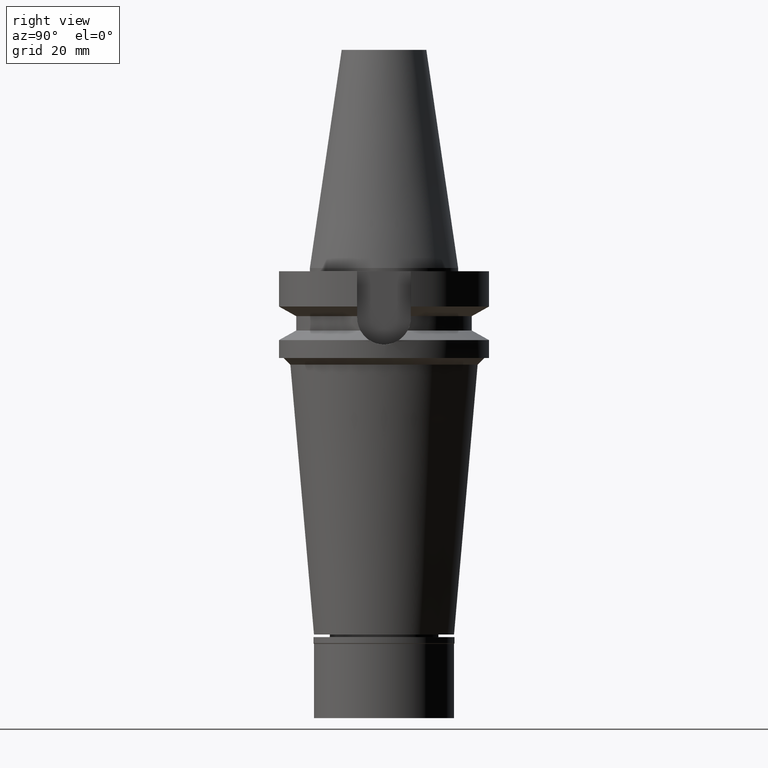
[diagram: clean part render]
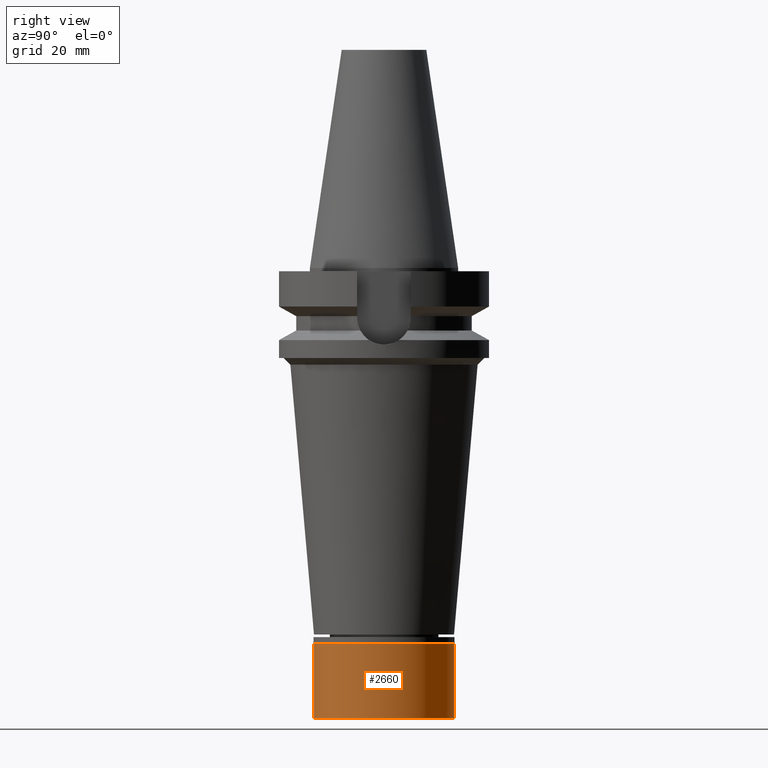
[diagram: same view with one face highlighted and labeled with its STEP entity id]
A machine part, right view. The second image highlights one B-rep face of the part: STEP entity #2660.
In plain terms, the highlighted cylindrical surface (partial cylindrical patch) has radius 21 mm, axis along (0, 0, -1).
Its self-contained STEP definition (entity closure, byte-faithful):
#126 = DIRECTION ( 'NONE',  ( 0.0000000000000000000, 0.0000000000000000000, 1.000000000000000000 ) ) ;
#141 = VERTEX_POINT ( 'NONE', #2190 ) ;
#164 = CARTESIAN_POINT ( 'NONE',  ( 0.0000000000000000000, 21.00000000000000000, -24.29999999999999716 ) ) ;
#339 = LINE ( 'NONE', #1289, #1392 ) ;
#366 = ORIENTED_EDGE ( 'NONE', *, *, #1312, .T. ) ;
#457 = DIRECTION ( 'NONE',  ( 0.0000000000000000000, 0.0000000000000000000, -1.000000000000000000 ) ) ;
#553 = CARTESIAN_POINT ( 'NONE',  ( 0.0000000000000000000, 0.0000000000000000000, -2.000000000000000000 ) ) ;
#626 = CARTESIAN_POINT ( 'NONE',  ( 0.0000000000000000000, 21.00000000000000000, -2.000000000000000000 ) ) ;
#628 = CIRCLE ( 'NONE', #2668, 21.00000000000000000 ) ;
#698 = DIRECTION ( 'NONE',  ( 0.0000000000000000000, -1.000000000000000000, 0.0000000000000000000 ) ) ;
#786 = VERTEX_POINT ( 'NONE', #1762 ) ;
#811 = AXIS2_PLACEMENT_3D ( 'NONE', #1670, #457, #698 ) ;
#913 = DIRECTION ( 'NONE',  ( 0.0000000000000000000, -1.000000000000000000, 0.0000000000000000000 ) ) ;
#1289 = CARTESIAN_POINT ( 'NONE',  ( 0.0000000000000000000, -21.00000000000000000, -2.000000000000000000 ) ) ;
#1294 = LINE ( 'NONE', #1788, #1432 ) ;
#1312 = EDGE_CURVE ( 'NONE', #786, #141, #339, .T. ) ;
#1392 = VECTOR ( 'NONE', #2268, 1000.000000000000000 ) ;
#1432 = VECTOR ( 'NONE', #2768, 1000.000000000000000 ) ;
#1434 = FACE_OUTER_BOUND ( 'NONE', #2281, .T. ) ;
#1538 = DIRECTION ( 'NONE',  ( 0.0000000000000000000, 0.0000000000000000000, -1.000000000000000000 ) ) ;
#1567 = CARTESIAN_POINT ( 'NONE',  ( 0.0000000000000000000, 0.0000000000000000000, -24.29999999999999716 ) ) ;
#1621 = EDGE_CURVE ( 'NONE', #141, #2049, #628, .T. ) ;
#1670 = CARTESIAN_POINT ( 'NONE',  ( 0.0000000000000000000, 0.0000000000000000000, 0.0000000000000000000 ) ) ;
#1762 = CARTESIAN_POINT ( 'NONE',  ( 0.0000000000000000000, -21.00000000000000000, -2.000000000000000000 ) ) ;
#1770 = ORIENTED_EDGE ( 'NONE', *, *, #1621, .T. ) ;
#1788 = CARTESIAN_POINT ( 'NONE',  ( 0.0000000000000000000, 21.00000000000000000, -2.000000000000000000 ) ) ;
#1977 = EDGE_CURVE ( 'NONE', #3021, #2049, #1294, .T. ) ;
#2046 = DIRECTION ( 'NONE',  ( 0.0000000000000000000, 1.000000000000000000, 0.0000000000000000000 ) ) ;
#2049 = VERTEX_POINT ( 'NONE', #164 ) ;
#2190 = CARTESIAN_POINT ( 'NONE',  ( 0.0000000000000000000, -21.00000000000000000, -24.29999999999999716 ) ) ;
#2268 = DIRECTION ( 'NONE',  ( 0.0000000000000000000, 0.0000000000000000000, -1.000000000000000000 ) ) ;
#2281 = EDGE_LOOP ( 'NONE', ( #2612, #366, #1770, #2565 ) ) ;
#2452 = AXIS2_PLACEMENT_3D ( 'NONE', #553, #1538, #2046 ) ;
#2565 = ORIENTED_EDGE ( 'NONE', *, *, #1977, .F. ) ;
#2612 = ORIENTED_EDGE ( 'NONE', *, *, #2913, .T. ) ;
#2646 = CYLINDRICAL_SURFACE ( 'NONE', #811, 21.00000000000000000 ) ;
#2660 = ADVANCED_FACE ( 'NONE', ( #1434 ), #2646, .T. ) ;
#2668 = AXIS2_PLACEMENT_3D ( 'NONE', #1567, #126, #913 ) ;
#2768 = DIRECTION ( 'NONE',  ( 0.0000000000000000000, 0.0000000000000000000, -1.000000000000000000 ) ) ;
#2913 = EDGE_CURVE ( 'NONE', #3021, #786, #3053, .T. ) ;
#3021 = VERTEX_POINT ( 'NONE', #626 ) ;
#3053 = CIRCLE ( 'NONE', #2452, 21.00000000000000000 ) ;